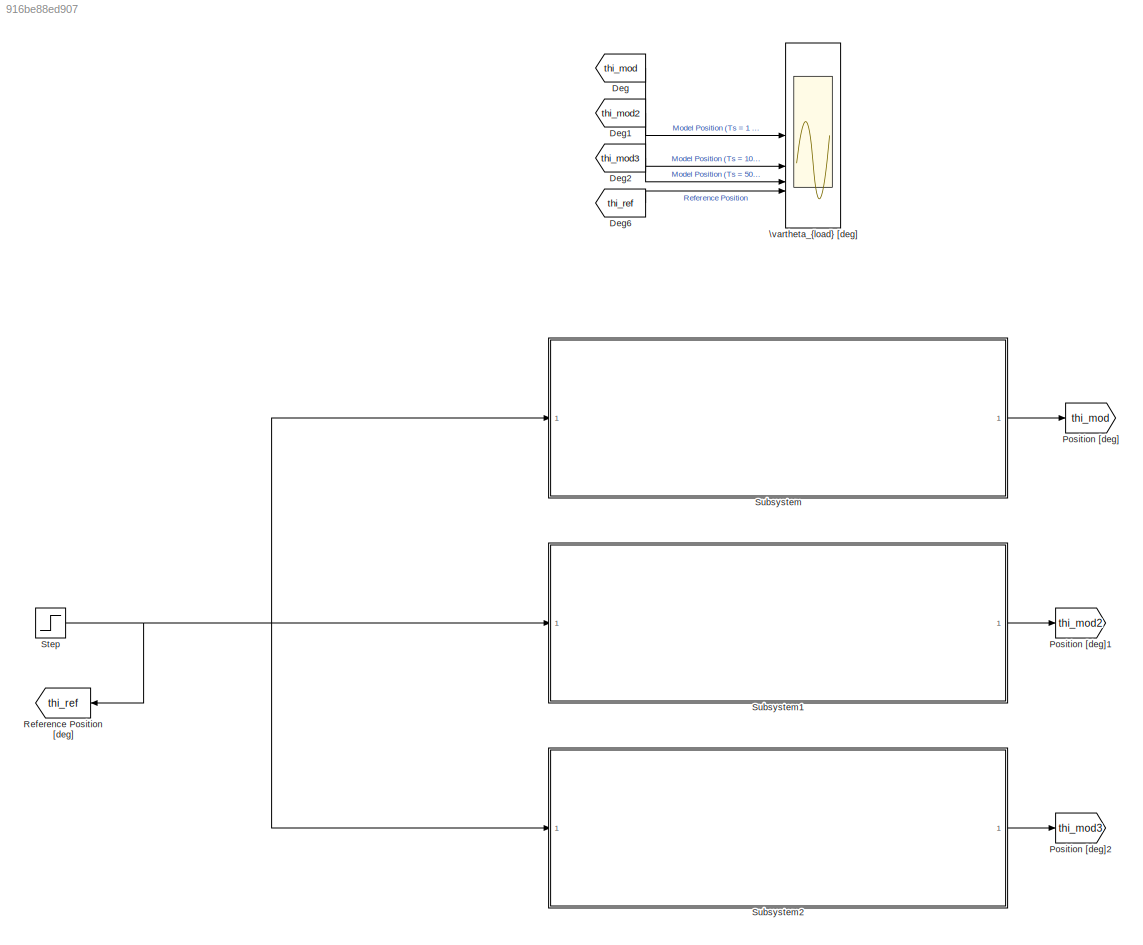
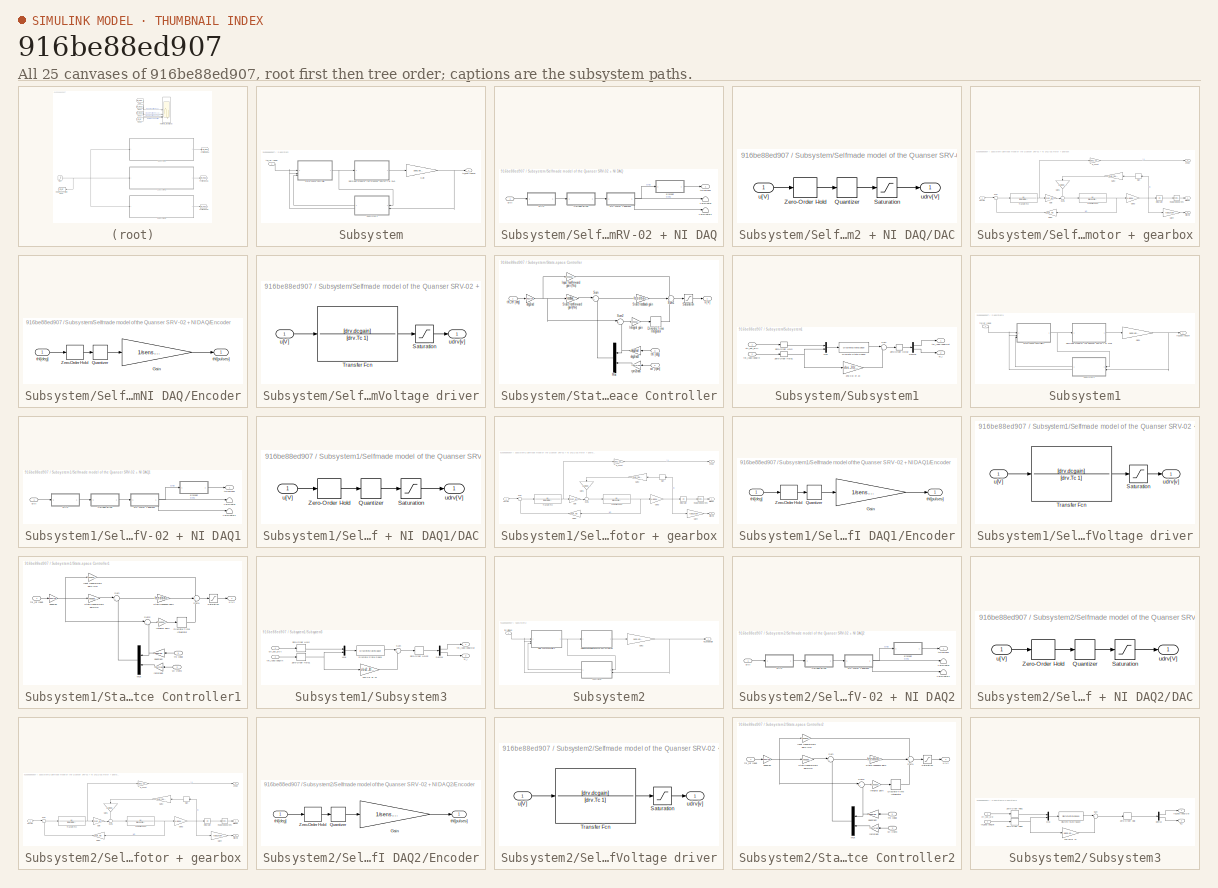
[diagram: thumbnail index - all 25 canvases of the model, root first then tree order]
MODEL slx_916be88ed907
KIND model
CONFIG AbsTol = auto
CONFIG EnableMultiTasking = off
CONFIG FixedStep = sIn.step_size
CONFIG MaxStep = auto
CONFIG MinStep = auto
CONFIG RelTol = auto
CONFIG SampleTimeConstraint = Unconstrained
CONFIG SolverName = FixedStepAuto
CONFIG StartTime = 0.0
CONFIG StopTime = sIn.simulation_time 
BLOCK [From] Deg
  GotoTag = thi_mod
BLOCK [From] Deg1
  GotoTag = thi_mod2
BLOCK [From] Deg2
  GotoTag = thi_mod3
BLOCK [From] Deg6
  GotoTag = thi_ref
BLOCK [Goto] Position [deg]
  GotoTag = thi_mod
BLOCK [Goto] Position [deg]1
  GotoTag = thi_mod2
BLOCK [Goto] Position [deg]2
  GotoTag = thi_mod3
BLOCK [Goto] Reference Position [deg]
  GotoTag = thi_ref
  NameLocation = top
BLOCK [Step] Step
  After = 50
  SampleTime = 0
  Time = 0
BLOCK [SubSystem] Subsystem
BLOCK [Gain] Subsystem/Gain
  Gain = sens.enc.pulse2deg
BLOCK [SubSystem] Subsystem/Selfmade model of the Quanser SRV-02 + NI DAQ
BLOCK [SubSystem] Subsystem/Selfmade model of the Quanser SRV-02 + NI DAQ/DAC
BLOCK [Quantizer] Subsystem/Selfmade model of the Quanser SRV-02 + NI DAQ/DAC/Quantizer
  QuantizationInterval = daq.dac.q
BLOCK [Saturate] Subsystem/Selfmade model of the Quanser SRV-02 + NI DAQ/DAC/Saturation
  LowerLimit = -10
  UpperLimit = 10
BLOCK [ZeroOrderHold] Subsystem/Selfmade model of the Quanser SRV-02 + NI DAQ/DAC/Zero-Order Hold
  SampleTime = 1e-3
BLOCK [Inport] Subsystem/Selfmade model of the Quanser SRV-02 + NI DAQ/DAC/u[V]
BLOCK [Outport] Subsystem/Selfmade model of the Quanser SRV-02 + NI DAQ/DAC/udrv[V]
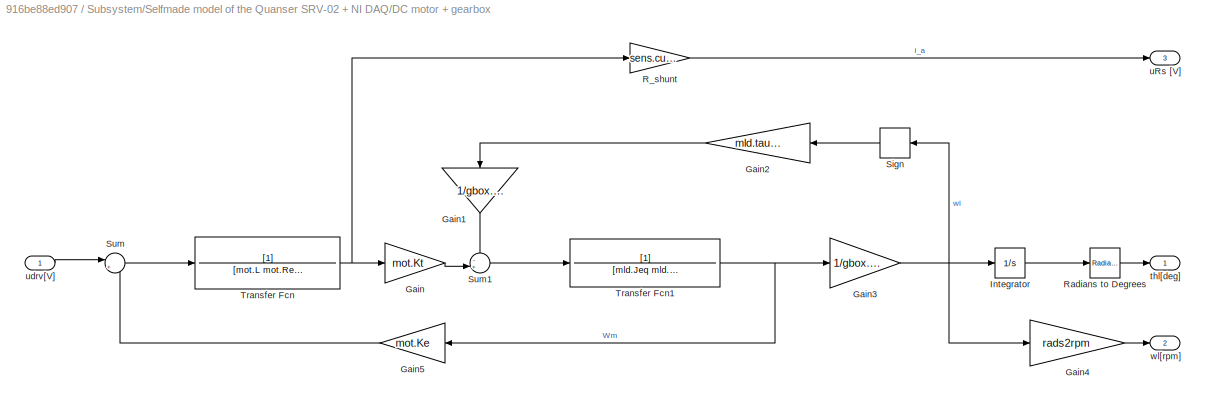
BLOCK [SubSystem] Subsystem/Selfmade model of the Quanser SRV-02 + NI DAQ/DC motor + gearbox
BLOCK [Gain] Subsystem/Selfmade model of the Quanser SRV-02 + NI DAQ/DC motor + gearbox/Gain
  Gain = mot.Kt
BLOCK [Gain] Subsystem/Selfmade model of the Quanser SRV-02 + NI DAQ/DC motor + gearbox/Gain1
  Gain = 1/gbox.N1
  NameLocation = left
BLOCK [Gain] Subsystem/Selfmade model of the Quanser SRV-02 + NI DAQ/DC motor + gearbox/Gain2
  Gain = mld.tausf
  NameLocation = top
BLOCK [Gain] Subsystem/Selfmade model of the Quanser SRV-02 + NI DAQ/DC motor + gearbox/Gain3
  Gain = 1/gbox.N1
BLOCK [Gain] Subsystem/Selfmade model of the Quanser SRV-02 + NI DAQ/DC motor + gearbox/Gain4
  Gain = rads2rpm
BLOCK [Gain] Subsystem/Selfmade model of the Quanser SRV-02 + NI DAQ/DC motor + gearbox/Gain5
  Gain = mot.Ke
  NameLocation = top
BLOCK [Integrator] Subsystem/Selfmade model of the Quanser SRV-02 + NI DAQ/DC motor + gearbox/Integrator
BLOCK [Gain] Subsystem/Selfmade model of the Quanser SRV-02 + NI DAQ/DC motor + gearbox/R_shunt
  Gain = sens.curr.Rs
BLOCK [Reference] Subsystem/Selfmade model of the Quanser SRV-02 + NI DAQ/DC motor + gearbox/Radians to Degrees  REF=simulink_extras/Transformations/Radians
to Degrees
  SourceBlock = simulink_extras/Transformations/Radians\nto Degrees
  SourceType = RadiansToDegrees
BLOCK [Signum] Subsystem/Selfmade model of the Quanser SRV-02 + NI DAQ/DC motor + gearbox/Sign
  NameLocation = top
  ZeroCross = off
BLOCK [Sum] Subsystem/Selfmade model of the Quanser SRV-02 + NI DAQ/DC motor + gearbox/Sum
  Inputs = |+-
BLOCK [Sum] Subsystem/Selfmade model of the Quanser SRV-02 + NI DAQ/DC motor + gearbox/Sum1
  Inputs = -+|
BLOCK [TransferFcn] Subsystem/Selfmade model of the Quanser SRV-02 + NI DAQ/DC motor + gearbox/Transfer Fcn
  Denominator = [mot.L mot.Req]
BLOCK [TransferFcn] Subsystem/Selfmade model of the Quanser SRV-02 + NI DAQ/DC motor + gearbox/Transfer Fcn1
  Denominator = [mld.Jeq mld.Beq]
BLOCK [Outport] Subsystem/Selfmade model of the Quanser SRV-02 + NI DAQ/DC motor + gearbox/thl[deg]
BLOCK [Outport] Subsystem/Selfmade model of the Quanser SRV-02 + NI DAQ/DC motor + gearbox/uRs [V]
  Port = 3
BLOCK [Inport] Subsystem/Selfmade model of the Quanser SRV-02 + NI DAQ/DC motor + gearbox/udrv[V]
BLOCK [Outport] Subsystem/Selfmade model of the Quanser SRV-02 + NI DAQ/DC motor + gearbox/wl[rpm]
  Port = 2
BLOCK [SubSystem] Subsystem/Selfmade model of the Quanser SRV-02 + NI DAQ/Encoder
  NameLocation = top
BLOCK [Gain] Subsystem/Selfmade model of the Quanser SRV-02 + NI DAQ/Encoder/Gain
  Gain = 1/sens.enc.pulse2deg
BLOCK [Quantizer] Subsystem/Selfmade model of the Quanser SRV-02 + NI DAQ/Encoder/Quantizer
  QuantizationInterval = sens.enc.pulse2deg
BLOCK [ZeroOrderHold] Subsystem/Selfmade model of the Quanser SRV-02 + NI DAQ/Encoder/Zero-Order Hold
  SampleTime = 1e-3
BLOCK [Inport] Subsystem/Selfmade model of the Quanser SRV-02 + NI DAQ/Encoder/thl[deg]
BLOCK [Outport] Subsystem/Selfmade model of the Quanser SRV-02 + NI DAQ/Encoder/thl[pulses]
BLOCK [Terminator] Subsystem/Selfmade model of the Quanser SRV-02 + NI DAQ/Terminator
BLOCK [Terminator] Subsystem/Selfmade model of the Quanser SRV-02 + NI DAQ/Terminator1
BLOCK [SubSystem] Subsystem/Selfmade model of the Quanser SRV-02 + NI DAQ/Voltage driver
BLOCK [Saturate] Subsystem/Selfmade model of the Quanser SRV-02 + NI DAQ/Voltage driver/Saturation
  LowerLimit = -12
  UpperLimit = 12
BLOCK [TransferFcn] Subsystem/Selfmade model of the Quanser SRV-02 + NI DAQ/Voltage driver/Transfer Fcn
  Denominator = [drv.Tc 1]
  Numerator = [drv.dcgain]
BLOCK [Inport] Subsystem/Selfmade model of the Quanser SRV-02 + NI DAQ/Voltage driver/u[V]
BLOCK [Outport] Subsystem/Selfmade model of the Quanser SRV-02 + NI DAQ/Voltage driver/udrv[v]
BLOCK [Outport] Subsystem/Selfmade model of the Quanser SRV-02 + NI DAQ/thl[pulses]
BLOCK [Inport] Subsystem/Selfmade model of the Quanser SRV-02 + NI DAQ/u[V]
BLOCK [SubSystem] Subsystem/State-space Controller
BLOCK [DiscreteIntegrator] Subsystem/State-space Controller/Discrete-Time Integrator
  ICPrevOutput = DiscIntNeverNeededParam
  ICPrevScaledInput = DiscIntNeverNeededParam
  InitialConditionSetting = Auto
  IntegratorMethod = Accumulation: Forward Euler
  SampleTime = sIn.T_s
BLOCK [Gain] Subsystem/State-space Controller/Input feedforward gain (Nu)
  Gain = feedback.Nu
BLOCK [Gain] Subsystem/State-space Controller/Integral gain
  Gain = feedback.Ki
BLOCK [Mux] Subsystem/State-space Controller/Mux
  DisplayOption = bar
  Inputs = 2
  NameLocation = top
BLOCK [Saturate] Subsystem/State-space Controller/Saturation
  LowerLimit = -10
  UpperLimit = 10
BLOCK [Gain] Subsystem/State-space Controller/State feedback gain
  Gain = feedback.K
  Multiplication = Matrix(K*u)
BLOCK [Gain] Subsystem/State-space Controller/State feedforward gain(Nx)
  Gain = feedback.Nx
BLOCK [Sum] Subsystem/State-space Controller/Sum
  Inputs = |+-
BLOCK [Sum] Subsystem/State-space Controller/Sum1
  Inputs = +++
BLOCK [Sum] Subsystem/State-space Controller/Sum2
  Inputs = |+-
BLOCK [Gain] Subsystem/State-space Controller/deg2rad
  Gain = deg2rad
BLOCK [Gain] Subsystem/State-space Controller/deg2rad2
  Gain = deg2rad
  NameLocation = top
BLOCK [Gain] Subsystem/State-space Controller/rpm2rads
  Gain = rpm2rads
  NameLocation = top
BLOCK [Inport] Subsystem/State-space Controller/thl [deg]
  NameLocation = top
  Port = 3
BLOCK [Inport] Subsystem/State-space Controller/thl_ref [deg]
BLOCK [Outport] Subsystem/State-space Controller/u [V]
BLOCK [Inport] Subsystem/State-space Controller/wl [rpm]
  NameLocation = top
  Port = 2
BLOCK [SubSystem] Subsystem/Subsystem1
  NameLocation = top
BLOCK [Gain] Subsystem/Subsystem1/2nd Col of J0
  Gain = obs.J0(:,2)
  NameLocation = top
BLOCK [Demux] Subsystem/Subsystem1/Demux
  Outputs = 2
BLOCK [DiscreteStateSpace] Subsystem/Subsystem1/Discrete State-Space
  A = obs.phi0
  B = obs.gamma0
  C = obs.H0
  D = zeros(2,2)
  SampleTime = sIn.T_s
BLOCK [Mux] Subsystem/Subsystem1/Mux
  DisplayOption = bar
  Inputs = 2
BLOCK [Sum] Subsystem/Subsystem1/Sum
  Inputs = |++
BLOCK [ZeroOrderHold] Subsystem/Subsystem1/Zero-Order Hold
  SampleTime = sIn.T_s
BLOCK [ZeroOrderHold] Subsystem/Subsystem1/Zero-Order Hold1
  SampleTime = sIn.T_s
BLOCK [ZeroOrderHold] Subsystem/Subsystem1/Zero-Order Hold2
  SampleTime = sIn.T_s
BLOCK [Inport] Subsystem/Subsystem1/ctr_out_u[V]
BLOCK [Outport] Subsystem/Subsystem1/thl_load [deg]Out
BLOCK [Inport] Subsystem/Subsystem1/thl_load [deg]in
  Port = 2
BLOCK [Outport] Subsystem/Subsystem1/w_l
  Port = 2
BLOCK [Outport] Subsystem/thl_load [deg]in
BLOCK [Inport] Subsystem/thl_ref [deg]
BLOCK [SubSystem] Subsystem1
BLOCK [Gain] Subsystem1/Gain1
  Gain = sens.enc.pulse2deg
BLOCK [SubSystem] Subsystem1/Selfmade model of the Quanser SRV-02 + NI DAQ1
BLOCK [SubSystem] Subsystem1/Selfmade model of the Quanser SRV-02 + NI DAQ1/DAC
BLOCK [Quantizer] Subsystem1/Selfmade model of the Quanser SRV-02 + NI DAQ1/DAC/Quantizer
  QuantizationInterval = daq.dac.q
BLOCK [Saturate] Subsystem1/Selfmade model of the Quanser SRV-02 + NI DAQ1/DAC/Saturation
  LowerLimit = -10
  UpperLimit = 10
BLOCK [ZeroOrderHold] Subsystem1/Selfmade model of the Quanser SRV-02 + NI DAQ1/DAC/Zero-Order Hold
  SampleTime = 1e-3
BLOCK [Inport] Subsystem1/Selfmade model of the Quanser SRV-02 + NI DAQ1/DAC/u[V]
BLOCK [Outport] Subsystem1/Selfmade model of the Quanser SRV-02 + NI DAQ1/DAC/udrv[V]
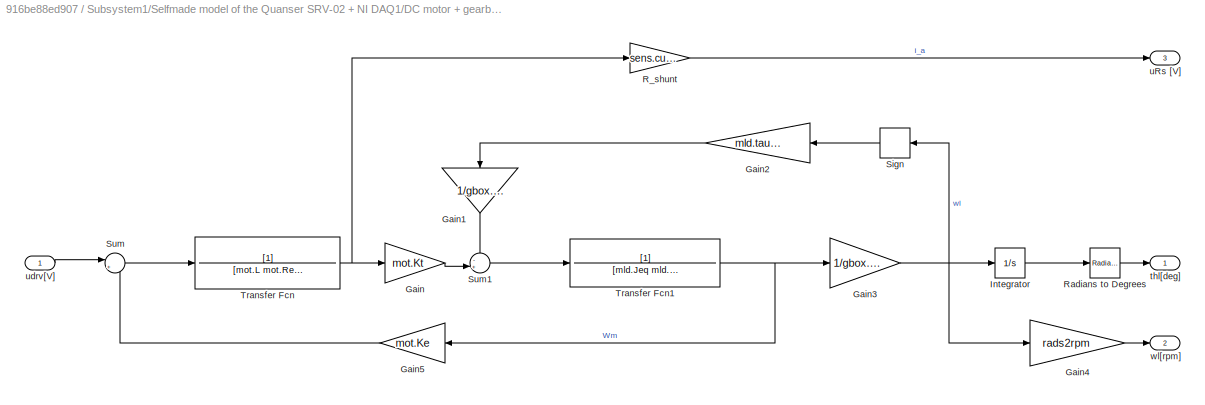
BLOCK [SubSystem] Subsystem1/Selfmade model of the Quanser SRV-02 + NI DAQ1/DC motor + gearbox
BLOCK [Gain] Subsystem1/Selfmade model of the Quanser SRV-02 + NI DAQ1/DC motor + gearbox/Gain
  Gain = mot.Kt
BLOCK [Gain] Subsystem1/Selfmade model of the Quanser SRV-02 + NI DAQ1/DC motor + gearbox/Gain1
  Gain = 1/gbox.N1
  NameLocation = left
BLOCK [Gain] Subsystem1/Selfmade model of the Quanser SRV-02 + NI DAQ1/DC motor + gearbox/Gain2
  Gain = mld.tausf
  NameLocation = top
BLOCK [Gain] Subsystem1/Selfmade model of the Quanser SRV-02 + NI DAQ1/DC motor + gearbox/Gain3
  Gain = 1/gbox.N1
BLOCK [Gain] Subsystem1/Selfmade model of the Quanser SRV-02 + NI DAQ1/DC motor + gearbox/Gain4
  Gain = rads2rpm
BLOCK [Gain] Subsystem1/Selfmade model of the Quanser SRV-02 + NI DAQ1/DC motor + gearbox/Gain5
  Gain = mot.Ke
  NameLocation = top
BLOCK [Integrator] Subsystem1/Selfmade model of the Quanser SRV-02 + NI DAQ1/DC motor + gearbox/Integrator
BLOCK [Gain] Subsystem1/Selfmade model of the Quanser SRV-02 + NI DAQ1/DC motor + gearbox/R_shunt
  Gain = sens.curr.Rs
BLOCK [Reference] Subsystem1/Selfmade model of the Quanser SRV-02 + NI DAQ1/DC motor + gearbox/Radians to Degrees  REF=simulink_extras/Transformations/Radians
to Degrees
  SourceBlock = simulink_extras/Transformations/Radians\nto Degrees
  SourceType = RadiansToDegrees
BLOCK [Signum] Subsystem1/Selfmade model of the Quanser SRV-02 + NI DAQ1/DC motor + gearbox/Sign
  NameLocation = top
  ZeroCross = off
BLOCK [Sum] Subsystem1/Selfmade model of the Quanser SRV-02 + NI DAQ1/DC motor + gearbox/Sum
  Inputs = |+-
BLOCK [Sum] Subsystem1/Selfmade model of the Quanser SRV-02 + NI DAQ1/DC motor + gearbox/Sum1
  Inputs = -+|
BLOCK [TransferFcn] Subsystem1/Selfmade model of the Quanser SRV-02 + NI DAQ1/DC motor + gearbox/Transfer Fcn
  Denominator = [mot.L mot.Req]
BLOCK [TransferFcn] Subsystem1/Selfmade model of the Quanser SRV-02 + NI DAQ1/DC motor + gearbox/Transfer Fcn1
  Denominator = [mld.Jeq mld.Beq]
BLOCK [Outport] Subsystem1/Selfmade model of the Quanser SRV-02 + NI DAQ1/DC motor + gearbox/thl[deg]
BLOCK [Outport] Subsystem1/Selfmade model of the Quanser SRV-02 + NI DAQ1/DC motor + gearbox/uRs [V]
  Port = 3
BLOCK [Inport] Subsystem1/Selfmade model of the Quanser SRV-02 + NI DAQ1/DC motor + gearbox/udrv[V]
BLOCK [Outport] Subsystem1/Selfmade model of the Quanser SRV-02 + NI DAQ1/DC motor + gearbox/wl[rpm]
  Port = 2
BLOCK [SubSystem] Subsystem1/Selfmade model of the Quanser SRV-02 + NI DAQ1/Encoder
  NameLocation = top
BLOCK [Gain] Subsystem1/Selfmade model of the Quanser SRV-02 + NI DAQ1/Encoder/Gain
  Gain = 1/sens.enc.pulse2deg
BLOCK [Quantizer] Subsystem1/Selfmade model of the Quanser SRV-02 + NI DAQ1/Encoder/Quantizer
  QuantizationInterval = sens.enc.pulse2deg
BLOCK [ZeroOrderHold] Subsystem1/Selfmade model of the Quanser SRV-02 + NI DAQ1/Encoder/Zero-Order Hold
  SampleTime = 1e-3
BLOCK [Inport] Subsystem1/Selfmade model of the Quanser SRV-02 + NI DAQ1/Encoder/thl[deg]
BLOCK [Outport] Subsystem1/Selfmade model of the Quanser SRV-02 + NI DAQ1/Encoder/thl[pulses]
BLOCK [Terminator] Subsystem1/Selfmade model of the Quanser SRV-02 + NI DAQ1/Terminator
BLOCK [Terminator] Subsystem1/Selfmade model of the Quanser SRV-02 + NI DAQ1/Terminator1
BLOCK [SubSystem] Subsystem1/Selfmade model of the Quanser SRV-02 + NI DAQ1/Voltage driver
BLOCK [Saturate] Subsystem1/Selfmade model of the Quanser SRV-02 + NI DAQ1/Voltage driver/Saturation
  LowerLimit = -12
  UpperLimit = 12
BLOCK [TransferFcn] Subsystem1/Selfmade model of the Quanser SRV-02 + NI DAQ1/Voltage driver/Transfer Fcn
  Denominator = [drv.Tc 1]
  Numerator = [drv.dcgain]
BLOCK [Inport] Subsystem1/Selfmade model of the Quanser SRV-02 + NI DAQ1/Voltage driver/u[V]
BLOCK [Outport] Subsystem1/Selfmade model of the Quanser SRV-02 + NI DAQ1/Voltage driver/udrv[v]
BLOCK [Outport] Subsystem1/Selfmade model of the Quanser SRV-02 + NI DAQ1/thl[pulses]
BLOCK [Inport] Subsystem1/Selfmade model of the Quanser SRV-02 + NI DAQ1/u[V]
BLOCK [SubSystem] Subsystem1/State-space Controller1
BLOCK [DiscreteIntegrator] Subsystem1/State-space Controller1/Discrete-Time Integrator
  ICPrevOutput = DiscIntNeverNeededParam
  ICPrevScaledInput = DiscIntNeverNeededParam
  InitialConditionSetting = Auto
  IntegratorMethod = Accumulation: Forward Euler
  SampleTime = sIn.T_s2
BLOCK [Gain] Subsystem1/State-space Controller1/Input feedforward gain (Nu)
  Gain = feedback2.Nu
BLOCK [Gain] Subsystem1/State-space Controller1/Integral gain
  Gain = feedback2.Ki
BLOCK [Mux] Subsystem1/State-space Controller1/Mux
  DisplayOption = bar
  Inputs = 2
  NameLocation = top
BLOCK [Saturate] Subsystem1/State-space Controller1/Saturation
  LowerLimit = -10
  UpperLimit = 10
BLOCK [Gain] Subsystem1/State-space Controller1/State feedback gain
  Gain = feedback2.K
  Multiplication = Matrix(K*u)
BLOCK [Gain] Subsystem1/State-space Controller1/State feedforward gain(Nx)
  Gain = feedback2.Nx
BLOCK [Sum] Subsystem1/State-space Controller1/Sum
  Inputs = |+-
BLOCK [Sum] Subsystem1/State-space Controller1/Sum1
  Inputs = +++
BLOCK [Sum] Subsystem1/State-space Controller1/Sum2
  Inputs = |+-
BLOCK [Gain] Subsystem1/State-space Controller1/deg2rad
  Gain = deg2rad
BLOCK [Gain] Subsystem1/State-space Controller1/deg2rad2
  Gain = deg2rad
  NameLocation = top
BLOCK [Gain] Subsystem1/State-space Controller1/rpm2rads
  Gain = rpm2rads
  NameLocation = top
BLOCK [Inport] Subsystem1/State-space Controller1/thl [deg]
  NameLocation = top
  Port = 3
BLOCK [Inport] Subsystem1/State-space Controller1/thl_ref [deg]
BLOCK [Outport] Subsystem1/State-space Controller1/u [V]
BLOCK [Inport] Subsystem1/State-space Controller1/wl [rpm]
  NameLocation = top
  Port = 2
BLOCK [SubSystem] Subsystem1/Subsystem3
  NameLocation = top
BLOCK [Gain] Subsystem1/Subsystem3/2nd Col of J0
  Gain = obs2.J0(:,2)
  NameLocation = top
BLOCK [Demux] Subsystem1/Subsystem3/Demux
  Outputs = 2
BLOCK [DiscreteStateSpace] Subsystem1/Subsystem3/Discrete State-Space
  A = obs2.phi0
  B = obs2.gamma0
  C = obs2.H0
  D = zeros(2,2)
  SampleTime = sIn.T_s2
BLOCK [Mux] Subsystem1/Subsystem3/Mux
  DisplayOption = bar
  Inputs = 2
BLOCK [Sum] Subsystem1/Subsystem3/Sum
  Inputs = |++
BLOCK [ZeroOrderHold] Subsystem1/Subsystem3/Zero-Order Hold
  SampleTime = sIn.T_s2
BLOCK [ZeroOrderHold] Subsystem1/Subsystem3/Zero-Order Hold1
  SampleTime = sIn.T_s2
BLOCK [ZeroOrderHold] Subsystem1/Subsystem3/Zero-Order Hold2
  SampleTime = sIn.T_s2
BLOCK [Inport] Subsystem1/Subsystem3/ctr_out_u[V]
BLOCK [Outport] Subsystem1/Subsystem3/thl_load [deg]Out
BLOCK [Inport] Subsystem1/Subsystem3/thl_load [deg]in
  Port = 2
BLOCK [Outport] Subsystem1/Subsystem3/w_l
  Port = 2
BLOCK [Outport] Subsystem1/thl_load [deg]in
BLOCK [Inport] Subsystem1/thl_ref [deg]
BLOCK [SubSystem] Subsystem2
BLOCK [Gain] Subsystem2/Gain2
  Gain = sens.enc.pulse2deg
BLOCK [SubSystem] Subsystem2/Selfmade model of the Quanser SRV-02 + NI DAQ2
BLOCK [SubSystem] Subsystem2/Selfmade model of the Quanser SRV-02 + NI DAQ2/DAC
BLOCK [Quantizer] Subsystem2/Selfmade model of the Quanser SRV-02 + NI DAQ2/DAC/Quantizer
  QuantizationInterval = daq.dac.q
BLOCK [Saturate] Subsystem2/Selfmade model of the Quanser SRV-02 + NI DAQ2/DAC/Saturation
  LowerLimit = -10
  UpperLimit = 10
BLOCK [ZeroOrderHold] Subsystem2/Selfmade model of the Quanser SRV-02 + NI DAQ2/DAC/Zero-Order Hold
  SampleTime = 1e-3
BLOCK [Inport] Subsystem2/Selfmade model of the Quanser SRV-02 + NI DAQ2/DAC/u[V]
BLOCK [Outport] Subsystem2/Selfmade model of the Quanser SRV-02 + NI DAQ2/DAC/udrv[V]
BLOCK [SubSystem] Subsystem2/Selfmade model of the Quanser SRV-02 + NI DAQ2/DC motor + gearbox
BLOCK [Gain] Subsystem2/Selfmade model of the Quanser SRV-02 + NI DAQ2/DC motor + gearbox/Gain
  Gain = mot.Kt
BLOCK [Gain] Subsystem2/Selfmade model of the Quanser SRV-02 + NI DAQ2/DC motor + gearbox/Gain1
  Gain = 1/gbox.N1
  NameLocation = left
BLOCK [Gain] Subsystem2/Selfmade model of the Quanser SRV-02 + NI DAQ2/DC motor + gearbox/Gain2
  Gain = mld.tausf
  NameLocation = top
BLOCK [Gain] Subsystem2/Selfmade model of the Quanser SRV-02 + NI DAQ2/DC motor + gearbox/Gain3
  Gain = 1/gbox.N1
BLOCK [Gain] Subsystem2/Selfmade model of the Quanser SRV-02 + NI DAQ2/DC motor + gearbox/Gain4
  Gain = rads2rpm
BLOCK [Gain] Subsystem2/Selfmade model of the Quanser SRV-02 + NI DAQ2/DC motor + gearbox/Gain5
  Gain = mot.Ke
  NameLocation = top
BLOCK [Integrator] Subsystem2/Selfmade model of the Quanser SRV-02 + NI DAQ2/DC motor + gearbox/Integrator
BLOCK [Gain] Subsystem2/Selfmade model of the Quanser SRV-02 + NI DAQ2/DC motor + gearbox/R_shunt
  Gain = sens.curr.Rs
BLOCK [Reference] Subsystem2/Selfmade model of the Quanser SRV-02 + NI DAQ2/DC motor + gearbox/Radians to Degrees  REF=simulink_extras/Transformations/Radians
to Degrees
  SourceBlock = simulink_extras/Transformations/Radians\nto Degrees
  SourceType = RadiansToDegrees
BLOCK [Signum] Subsystem2/Selfmade model of the Quanser SRV-02 + NI DAQ2/DC motor + gearbox/Sign
  NameLocation = top
  ZeroCross = off
BLOCK [Sum] Subsystem2/Selfmade model of the Quanser SRV-02 + NI DAQ2/DC motor + gearbox/Sum
  Inputs = |+-
BLOCK [Sum] Subsystem2/Selfmade model of the Quanser SRV-02 + NI DAQ2/DC motor + gearbox/Sum1
  Inputs = -+|
BLOCK [TransferFcn] Subsystem2/Selfmade model of the Quanser SRV-02 + NI DAQ2/DC motor + gearbox/Transfer Fcn
  Denominator = [mot.L mot.Req]
BLOCK [TransferFcn] Subsystem2/Selfmade model of the Quanser SRV-02 + NI DAQ2/DC motor + gearbox/Transfer Fcn1
  Denominator = [mld.Jeq mld.Beq]
BLOCK [Outport] Subsystem2/Selfmade model of the Quanser SRV-02 + NI DAQ2/DC motor + gearbox/thl[deg]
BLOCK [Outport] Subsystem2/Selfmade model of the Quanser SRV-02 + NI DAQ2/DC motor + gearbox/uRs [V]
  Port = 3
BLOCK [Inport] Subsystem2/Selfmade model of the Quanser SRV-02 + NI DAQ2/DC motor + gearbox/udrv[V]
BLOCK [Outport] Subsystem2/Selfmade model of the Quanser SRV-02 + NI DAQ2/DC motor + gearbox/wl[rpm]
  Port = 2
BLOCK [SubSystem] Subsystem2/Selfmade model of the Quanser SRV-02 + NI DAQ2/Encoder
  NameLocation = top
BLOCK [Gain] Subsystem2/Selfmade model of the Quanser SRV-02 + NI DAQ2/Encoder/Gain
  Gain = 1/sens.enc.pulse2deg
BLOCK [Quantizer] Subsystem2/Selfmade model of the Quanser SRV-02 + NI DAQ2/Encoder/Quantizer
  QuantizationInterval = sens.enc.pulse2deg
BLOCK [ZeroOrderHold] Subsystem2/Selfmade model of the Quanser SRV-02 + NI DAQ2/Encoder/Zero-Order Hold
  SampleTime = 1e-3
BLOCK [Inport] Subsystem2/Selfmade model of the Quanser SRV-02 + NI DAQ2/Encoder/thl[deg]
BLOCK [Outport] Subsystem2/Selfmade model of the Quanser SRV-02 + NI DAQ2/Encoder/thl[pulses]
BLOCK [Terminator] Subsystem2/Selfmade model of the Quanser SRV-02 + NI DAQ2/Terminator
BLOCK [Terminator] Subsystem2/Selfmade model of the Quanser SRV-02 + NI DAQ2/Terminator1
BLOCK [SubSystem] Subsystem2/Selfmade model of the Quanser SRV-02 + NI DAQ2/Voltage driver
BLOCK [Saturate] Subsystem2/Selfmade model of the Quanser SRV-02 + NI DAQ2/Voltage driver/Saturation
  LowerLimit = -12
  UpperLimit = 12
BLOCK [TransferFcn] Subsystem2/Selfmade model of the Quanser SRV-02 + NI DAQ2/Voltage driver/Transfer Fcn
  Denominator = [drv.Tc 1]
  Numerator = [drv.dcgain]
BLOCK [Inport] Subsystem2/Selfmade model of the Quanser SRV-02 + NI DAQ2/Voltage driver/u[V]
BLOCK [Outport] Subsystem2/Selfmade model of the Quanser SRV-02 + NI DAQ2/Voltage driver/udrv[v]
BLOCK [Outport] Subsystem2/Selfmade model of the Quanser SRV-02 + NI DAQ2/thl[pulses]
BLOCK [Inport] Subsystem2/Selfmade model of the Quanser SRV-02 + NI DAQ2/u[V]
BLOCK [SubSystem] Subsystem2/State-space Controller2
BLOCK [DiscreteIntegrator] Subsystem2/State-space Controller2/Discrete-Time Integrator
  ICPrevOutput = DiscIntNeverNeededParam
  ICPrevScaledInput = DiscIntNeverNeededParam
  InitialConditionSetting = Auto
  IntegratorMethod = Accumulation: Forward Euler
  SampleTime = sIn.T_s3
BLOCK [Gain] Subsystem2/State-space Controller2/Input feedforward gain (Nu)
  Gain = feedback3.Nu
BLOCK [Gain] Subsystem2/State-space Controller2/Integral gain
  Gain = feedback3.Ki
BLOCK [Mux] Subsystem2/State-space Controller2/Mux
  DisplayOption = bar
  Inputs = 2
  NameLocation = top
BLOCK [Saturate] Subsystem2/State-space Controller2/Saturation
  LowerLimit = -10
  UpperLimit = 10
BLOCK [Gain] Subsystem2/State-space Controller2/State feedback gain
  Gain = feedback3.K
  Multiplication = Matrix(K*u)
BLOCK [Gain] Subsystem2/State-space Controller2/State feedforward gain(Nx)
  Gain = feedback3.Nx
BLOCK [Sum] Subsystem2/State-space Controller2/Sum
  Inputs = |+-
BLOCK [Sum] Subsystem2/State-space Controller2/Sum1
  Inputs = +++
BLOCK [Sum] Subsystem2/State-space Controller2/Sum2
  Inputs = |+-
BLOCK [Gain] Subsystem2/State-space Controller2/deg2rad
  Gain = deg2rad
BLOCK [Gain] Subsystem2/State-space Controller2/deg2rad2
  Gain = deg2rad
  NameLocation = top
BLOCK [Gain] Subsystem2/State-space Controller2/rpm2rads
  Gain = rpm2rads
  NameLocation = top
BLOCK [Inport] Subsystem2/State-space Controller2/thl [deg]
  NameLocation = top
  Port = 3
BLOCK [Inport] Subsystem2/State-space Controller2/thl_ref [deg]
BLOCK [Outport] Subsystem2/State-space Controller2/u [V]
BLOCK [Inport] Subsystem2/State-space Controller2/wl [rpm]
  NameLocation = top
  Port = 2
BLOCK [SubSystem] Subsystem2/Subsystem3
  NameLocation = top
BLOCK [Gain] Subsystem2/Subsystem3/2nd Col of J0
  Gain = obs3.J0(:,2)
  NameLocation = top
BLOCK [Demux] Subsystem2/Subsystem3/Demux
  Outputs = 2
BLOCK [DiscreteStateSpace] Subsystem2/Subsystem3/Discrete State-Space
  A = obs3.phi0
  B = obs3.gamma0
  C = obs3.H0
  D = zeros(2,2)
  SampleTime = sIn.T_s3
BLOCK [Mux] Subsystem2/Subsystem3/Mux
  DisplayOption = bar
  Inputs = 2
BLOCK [Sum] Subsystem2/Subsystem3/Sum
  Inputs = |++
BLOCK [ZeroOrderHold] Subsystem2/Subsystem3/Zero-Order Hold
  SampleTime = sIn.T_s3
BLOCK [ZeroOrderHold] Subsystem2/Subsystem3/Zero-Order Hold1
  SampleTime = sIn.T_s3
BLOCK [ZeroOrderHold] Subsystem2/Subsystem3/Zero-Order Hold2
  SampleTime = sIn.T_s3
BLOCK [Inport] Subsystem2/Subsystem3/ctr_out_u[V]
BLOCK [Outport] Subsystem2/Subsystem3/thl_load [deg]Out
BLOCK [Inport] Subsystem2/Subsystem3/thl_load [deg]in
  Port = 2
BLOCK [Outport] Subsystem2/Subsystem3/w_l
  Port = 2
BLOCK [Outport] Subsystem2/thl_load [deg]in
BLOCK [Inport] Subsystem2/thl_ref [deg]
BLOCK [Scope] \vartheta_{load} [deg]
  Floating = off
  NumInputPorts = 4
  ScopeSpecificationString = Simulink.scopes.TimeScopeBlockCfg('CurrentConfiguration', extmgr.ConfigurationSet(extmgr.Configuration('Core','General UI',true),extmgr.Configuration('Core','Source UI',true),extmgr.Configuration('Sources','WiredSimulink',true,'DataLoggingVariableName','ScopeData1','DataLogging',true,'DataLoggingSaveFormat','StructureWithTime'),extmgr.Configuration('Visuals','Time Domain',true,'SerializedDisplays'...<+1806ch>
LINE Deg1:1 -> \vartheta_{load} [deg]:2
LINE Deg2:1 -> \vartheta_{load} [deg]:3
LINE Deg6:1 -> \vartheta_{load} [deg]:4
LINE Deg:1 -> \vartheta_{load} [deg]:1
NET Step:1 -> Reference Position [deg]:1, Subsystem1:1, Subsystem2:1, Subsystem:1
NET Subsystem/Gain:1 -> Subsystem/Subsystem1:2, Subsystem/thl_load [deg]in:1
LINE Subsystem/Selfmade model of the Quanser SRV-02 + NI DAQ/DAC/Quantizer:1 -> Subsystem/Selfmade model of the Quanser SRV-02 + NI DAQ/DAC/Saturation:1
LINE Subsystem/Selfmade model of the Quanser SRV-02 + NI DAQ/DAC/Saturation:1 -> Subsystem/Selfmade model of the Quanser SRV-02 + NI DAQ/DAC/udrv[V]:1
LINE Subsystem/Selfmade model of the Quanser SRV-02 + NI DAQ/DAC/Zero-Order Hold:1 -> Subsystem/Selfmade model of the Quanser SRV-02 + NI DAQ/DAC/Quantizer:1
LINE Subsystem/Selfmade model of the Quanser SRV-02 + NI DAQ/DAC/u[V]:1 -> Subsystem/Selfmade model of the Quanser SRV-02 + NI DAQ/DAC/Zero-Order Hold:1
LINE Subsystem/Selfmade model of the Quanser SRV-02 + NI DAQ/DAC:1 -> Subsystem/Selfmade model of the Quanser SRV-02 + NI DAQ/Voltage driver:1
LINE Subsystem/Selfmade model of the Quanser SRV-02 + NI DAQ/DC motor + gearbox/Gain1:1 -> Subsystem/Selfmade model of the Quanser SRV-02 + NI DAQ/DC motor + gearbox/Sum1:1
LINE Subsystem/Selfmade model of the Quanser SRV-02 + NI DAQ/DC motor + gearbox/Gain2:1 -> Subsystem/Selfmade model of the Quanser SRV-02 + NI DAQ/DC motor + gearbox/Gain1:1
NET Subsystem/Selfmade model of the Quanser SRV-02 + NI DAQ/DC motor + gearbox/Gain3:1 -> Subsystem/Selfmade model of the Quanser SRV-02 + NI DAQ/DC motor + gearbox/Gain4:1, Subsystem/Selfmade model of the Quanser SRV-02 + NI DAQ/DC motor + gearbox/Integrator:1, Subsystem/Selfmade model of the Quanser SRV-02 + NI DAQ/DC motor + gearbox/Sign:1
LINE Subsystem/Selfmade model of the Quanser SRV-02 + NI DAQ/DC motor + gearbox/Gain4:1 -> Subsystem/Selfmade model of the Quanser SRV-02 + NI DAQ/DC motor + gearbox/wl[rpm]:1
LINE Subsystem/Selfmade model of the Quanser SRV-02 + NI DAQ/DC motor + gearbox/Gain5:1 -> Subsystem/Selfmade model of the Quanser SRV-02 + NI DAQ/DC motor + gearbox/Sum:2
LINE Subsystem/Selfmade model of the Quanser SRV-02 + NI DAQ/DC motor + gearbox/Gain:1 -> Subsystem/Selfmade model of the Quanser SRV-02 + NI DAQ/DC motor + gearbox/Sum1:2
LINE Subsystem/Selfmade model of the Quanser SRV-02 + NI DAQ/DC motor + gearbox/Integrator:1 -> Subsystem/Selfmade model of the Quanser SRV-02 + NI DAQ/DC motor + gearbox/Radians to Degrees:1
LINE Subsystem/Selfmade model of the Quanser SRV-02 + NI DAQ/DC motor + gearbox/R_shunt:1 -> Subsystem/Selfmade model of the Quanser SRV-02 + NI DAQ/DC motor + gearbox/uRs [V]:1
LINE Subsystem/Selfmade model of the Quanser SRV-02 + NI DAQ/DC motor + gearbox/Radians to Degrees:1 -> Subsystem/Selfmade model of the Quanser SRV-02 + NI DAQ/DC motor + gearbox/thl[deg]:1
LINE Subsystem/Selfmade model of the Quanser SRV-02 + NI DAQ/DC motor + gearbox/Sign:1 -> Subsystem/Selfmade model of the Quanser SRV-02 + NI DAQ/DC motor + gearbox/Gain2:1
LINE Subsystem/Selfmade model of the Quanser SRV-02 + NI DAQ/DC motor + gearbox/Sum1:1 -> Subsystem/Selfmade model of the Quanser SRV-02 + NI DAQ/DC motor + gearbox/Transfer Fcn1:1
LINE Subsystem/Selfmade model of the Quanser SRV-02 + NI DAQ/DC motor + gearbox/Sum:1 -> Subsystem/Selfmade model of the Quanser SRV-02 + NI DAQ/DC motor + gearbox/Transfer Fcn:1
NET Subsystem/Selfmade model of the Quanser SRV-02 + NI DAQ/DC motor + gearbox/Transfer Fcn1:1 -> Subsystem/Selfmade model of the Quanser SRV-02 + NI DAQ/DC motor + gearbox/Gain3:1, Subsystem/Selfmade model of the Quanser SRV-02 + NI DAQ/DC motor + gearbox/Gain5:1
NET Subsystem/Selfmade model of the Quanser SRV-02 + NI DAQ/DC motor + gearbox/Transfer Fcn:1 -> Subsystem/Selfmade model of the Quanser SRV-02 + NI DAQ/DC motor + gearbox/Gain:1, Subsystem/Selfmade model of the Quanser SRV-02 + NI DAQ/DC motor + gearbox/R_shunt:1
LINE Subsystem/Selfmade model of the Quanser SRV-02 + NI DAQ/DC motor + gearbox/udrv[V]:1 -> Subsystem/Selfmade model of the Quanser SRV-02 + NI DAQ/DC motor + gearbox/Sum:1
LINE Subsystem/Selfmade model of the Quanser SRV-02 + NI DAQ/DC motor + gearbox:1 -> Subsystem/Selfmade model of the Quanser SRV-02 + NI DAQ/Encoder:1
LINE Subsystem/Selfmade model of the Quanser SRV-02 + NI DAQ/DC motor + gearbox:2 -> Subsystem/Selfmade model of the Quanser SRV-02 + NI DAQ/Terminator:1
LINE Subsystem/Selfmade model of the Quanser SRV-02 + NI DAQ/DC motor + gearbox:3 -> Subsystem/Selfmade model of the Quanser SRV-02 + NI DAQ/Terminator1:1
LINE Subsystem/Selfmade model of the Quanser SRV-02 + NI DAQ/Encoder/Gain:1 -> Subsystem/Selfmade model of the Quanser SRV-02 + NI DAQ/Encoder/thl[pulses]:1
LINE Subsystem/Selfmade model of the Quanser SRV-02 + NI DAQ/Encoder/Quantizer:1 -> Subsystem/Selfmade model of the Quanser SRV-02 + NI DAQ/Encoder/Gain:1
LINE Subsystem/Selfmade model of the Quanser SRV-02 + NI DAQ/Encoder/Zero-Order Hold:1 -> Subsystem/Selfmade model of the Quanser SRV-02 + NI DAQ/Encoder/Quantizer:1
LINE Subsystem/Selfmade model of the Quanser SRV-02 + NI DAQ/Encoder/thl[deg]:1 -> Subsystem/Selfmade model of the Quanser SRV-02 + NI DAQ/Encoder/Zero-Order Hold:1
LINE Subsystem/Selfmade model of the Quanser SRV-02 + NI DAQ/Encoder:1 -> Subsystem/Selfmade model of the Quanser SRV-02 + NI DAQ/thl[pulses]:1
LINE Subsystem/Selfmade model of the Quanser SRV-02 + NI DAQ/Voltage driver/Saturation:1 -> Subsystem/Selfmade model of the Quanser SRV-02 + NI DAQ/Voltage driver/udrv[v]:1
LINE Subsystem/Selfmade model of the Quanser SRV-02 + NI DAQ/Voltage driver/Transfer Fcn:1 -> Subsystem/Selfmade model of the Quanser SRV-02 + NI DAQ/Voltage driver/Saturation:1
LINE Subsystem/Selfmade model of the Quanser SRV-02 + NI DAQ/Voltage driver/u[V]:1 -> Subsystem/Selfmade model of the Quanser SRV-02 + NI DAQ/Voltage driver/Transfer Fcn:1
LINE Subsystem/Selfmade model of the Quanser SRV-02 + NI DAQ/Voltage driver:1 -> Subsystem/Selfmade model of the Quanser SRV-02 + NI DAQ/DC motor + gearbox:1
LINE Subsystem/Selfmade model of the Quanser SRV-02 + NI DAQ/u[V]:1 -> Subsystem/Selfmade model of the Quanser SRV-02 + NI DAQ/DAC:1
LINE Subsystem/Selfmade model of the Quanser SRV-02 + NI DAQ:1 -> Subsystem/Gain:1
LINE Subsystem/State-space Controller/Discrete-Time Integrator:1 -> Subsystem/State-space Controller/Sum1:3
LINE Subsystem/State-space Controller/Input feedforward gain (Nu):1 -> Subsystem/State-space Controller/Sum1:1
LINE Subsystem/State-space Controller/Integral gain:1 -> Subsystem/State-space Controller/Discrete-Time Integrator:1
LINE Subsystem/State-space Controller/Mux:1 -> Subsystem/State-space Controller/Sum:2
LINE Subsystem/State-space Controller/Saturation:1 -> Subsystem/State-space Controller/u [V]:1
LINE Subsystem/State-space Controller/State feedback gain:1 -> Subsystem/State-space Controller/Sum1:2
LINE Subsystem/State-space Controller/State feedforward gain(Nx):1 -> Subsystem/State-space Controller/Sum:1
LINE Subsystem/State-space Controller/Sum1:1 -> Subsystem/State-space Controller/Saturation:1
LINE Subsystem/State-space Controller/Sum2:1 -> Subsystem/State-space Controller/Integral gain:1
LINE Subsystem/State-space Controller/Sum:1 -> Subsystem/State-space Controller/State feedback gain:1
NET Subsystem/State-space Controller/deg2rad2:1 -> Subsystem/State-space Controller/Mux:1, Subsystem/State-space Controller/Sum2:2
NET Subsystem/State-space Controller/deg2rad:1 -> Subsystem/State-space Controller/Input feedforward gain (Nu):1, Subsystem/State-space Controller/State feedforward gain(Nx):1, Subsystem/State-space Controller/Sum2:1
LINE Subsystem/State-space Controller/rpm2rads:1 -> Subsystem/State-space Controller/Mux:2
LINE Subsystem/State-space Controller/thl [deg]:1 -> Subsystem/State-space Controller/deg2rad2:1
LINE Subsystem/State-space Controller/thl_ref [deg]:1 -> Subsystem/State-space Controller/deg2rad:1
LINE Subsystem/State-space Controller/wl [rpm]:1 -> Subsystem/State-space Controller/rpm2rads:1
NET Subsystem/State-space Controller:1 -> Subsystem/Selfmade model of the Quanser SRV-02 + NI DAQ:1, Subsystem/Subsystem1:1
LINE Subsystem/Subsystem1/2nd Col of J0:1 -> Subsystem/Subsystem1/Sum:2
LINE Subsystem/Subsystem1/Demux:1 -> Subsystem/Subsystem1/thl_load [deg]Out:1
LINE Subsystem/Subsystem1/Demux:2 -> Subsystem/Subsystem1/w_l:1
LINE Subsystem/Subsystem1/Discrete State-Space:1 -> Subsystem/Subsystem1/Sum:1
LINE Subsystem/Subsystem1/Mux:1 -> Subsystem/Subsystem1/Discrete State-Space:1
LINE Subsystem/Subsystem1/Sum:1 -> Subsystem/Subsystem1/Zero-Order Hold2:1
NET Subsystem/Subsystem1/Zero-Order Hold1:1 -> Subsystem/Subsystem1/2nd Col of J0:1, Subsystem/Subsystem1/Mux:2
LINE Subsystem/Subsystem1/Zero-Order Hold2:1 -> Subsystem/Subsystem1/Demux:1
LINE Subsystem/Subsystem1/Zero-Order Hold:1 -> Subsystem/Subsystem1/Mux:1
LINE Subsystem/Subsystem1/ctr_out_u[V]:1 -> Subsystem/Subsystem1/Zero-Order Hold:1
LINE Subsystem/Subsystem1/thl_load [deg]in:1 -> Subsystem/Subsystem1/Zero-Order Hold1:1
LINE Subsystem/Subsystem1:1 -> Subsystem/State-space Controller:3
LINE Subsystem/Subsystem1:2 -> Subsystem/State-space Controller:2
LINE Subsystem/thl_ref [deg]:1 -> Subsystem/State-space Controller:1
NET Subsystem1/Gain1:1 -> Subsystem1/Subsystem3:2, Subsystem1/thl_load [deg]in:1
LINE Subsystem1/Selfmade model of the Quanser SRV-02 + NI DAQ1/DAC/Quantizer:1 -> Subsystem1/Selfmade model of the Quanser SRV-02 + NI DAQ1/DAC/Saturation:1
LINE Subsystem1/Selfmade model of the Quanser SRV-02 + NI DAQ1/DAC/Saturation:1 -> Subsystem1/Selfmade model of the Quanser SRV-02 + NI DAQ1/DAC/udrv[V]:1
LINE Subsystem1/Selfmade model of the Quanser SRV-02 + NI DAQ1/DAC/Zero-Order Hold:1 -> Subsystem1/Selfmade model of the Quanser SRV-02 + NI DAQ1/DAC/Quantizer:1
LINE Subsystem1/Selfmade model of the Quanser SRV-02 + NI DAQ1/DAC/u[V]:1 -> Subsystem1/Selfmade model of the Quanser SRV-02 + NI DAQ1/DAC/Zero-Order Hold:1
LINE Subsystem1/Selfmade model of the Quanser SRV-02 + NI DAQ1/DAC:1 -> Subsystem1/Selfmade model of the Quanser SRV-02 + NI DAQ1/Voltage driver:1
LINE Subsystem1/Selfmade model of the Quanser SRV-02 + NI DAQ1/DC motor + gearbox/Gain1:1 -> Subsystem1/Selfmade model of the Quanser SRV-02 + NI DAQ1/DC motor + gearbox/Sum1:1
LINE Subsystem1/Selfmade model of the Quanser SRV-02 + NI DAQ1/DC motor + gearbox/Gain2:1 -> Subsystem1/Selfmade model of the Quanser SRV-02 + NI DAQ1/DC motor + gearbox/Gain1:1
NET Subsystem1/Selfmade model of the Quanser SRV-02 + NI DAQ1/DC motor + gearbox/Gain3:1 -> Subsystem1/Selfmade model of the Quanser SRV-02 + NI DAQ1/DC motor + gearbox/Gain4:1, Subsystem1/Selfmade model of the Quanser SRV-02 + NI DAQ1/DC motor + gearbox/Integrator:1, Subsystem1/Selfmade model of the Quanser SRV-02 + NI DAQ1/DC motor + gearbox/Sign:1
LINE Subsystem1/Selfmade model of the Quanser SRV-02 + NI DAQ1/DC motor + gearbox/Gain4:1 -> Subsystem1/Selfmade model of the Quanser SRV-02 + NI DAQ1/DC motor + gearbox/wl[rpm]:1
LINE Subsystem1/Selfmade model of the Quanser SRV-02 + NI DAQ1/DC motor + gearbox/Gain5:1 -> Subsystem1/Selfmade model of the Quanser SRV-02 + NI DAQ1/DC motor + gearbox/Sum:2
LINE Subsystem1/Selfmade model of the Quanser SRV-02 + NI DAQ1/DC motor + gearbox/Gain:1 -> Subsystem1/Selfmade model of the Quanser SRV-02 + NI DAQ1/DC motor + gearbox/Sum1:2
LINE Subsystem1/Selfmade model of the Quanser SRV-02 + NI DAQ1/DC motor + gearbox/Integrator:1 -> Subsystem1/Selfmade model of the Quanser SRV-02 + NI DAQ1/DC motor + gearbox/Radians to Degrees:1
LINE Subsystem1/Selfmade model of the Quanser SRV-02 + NI DAQ1/DC motor + gearbox/R_shunt:1 -> Subsystem1/Selfmade model of the Quanser SRV-02 + NI DAQ1/DC motor + gearbox/uRs [V]:1
LINE Subsystem1/Selfmade model of the Quanser SRV-02 + NI DAQ1/DC motor + gearbox/Radians to Degrees:1 -> Subsystem1/Selfmade model of the Quanser SRV-02 + NI DAQ1/DC motor + gearbox/thl[deg]:1
LINE Subsystem1/Selfmade model of the Quanser SRV-02 + NI DAQ1/DC motor + gearbox/Sign:1 -> Subsystem1/Selfmade model of the Quanser SRV-02 + NI DAQ1/DC motor + gearbox/Gain2:1
LINE Subsystem1/Selfmade model of the Quanser SRV-02 + NI DAQ1/DC motor + gearbox/Sum1:1 -> Subsystem1/Selfmade model of the Quanser SRV-02 + NI DAQ1/DC motor + gearbox/Transfer Fcn1:1
LINE Subsystem1/Selfmade model of the Quanser SRV-02 + NI DAQ1/DC motor + gearbox/Sum:1 -> Subsystem1/Selfmade model of the Quanser SRV-02 + NI DAQ1/DC motor + gearbox/Transfer Fcn:1
NET Subsystem1/Selfmade model of the Quanser SRV-02 + NI DAQ1/DC motor + gearbox/Transfer Fcn1:1 -> Subsystem1/Selfmade model of the Quanser SRV-02 + NI DAQ1/DC motor + gearbox/Gain3:1, Subsystem1/Selfmade model of the Quanser SRV-02 + NI DAQ1/DC motor + gearbox/Gain5:1
NET Subsystem1/Selfmade model of the Quanser SRV-02 + NI DAQ1/DC motor + gearbox/Transfer Fcn:1 -> Subsystem1/Selfmade model of the Quanser SRV-02 + NI DAQ1/DC motor + gearbox/Gain:1, Subsystem1/Selfmade model of the Quanser SRV-02 + NI DAQ1/DC motor + gearbox/R_shunt:1
LINE Subsystem1/Selfmade model of the Quanser SRV-02 + NI DAQ1/DC motor + gearbox/udrv[V]:1 -> Subsystem1/Selfmade model of the Quanser SRV-02 + NI DAQ1/DC motor + gearbox/Sum:1
LINE Subsystem1/Selfmade model of the Quanser SRV-02 + NI DAQ1/DC motor + gearbox:1 -> Subsystem1/Selfmade model of the Quanser SRV-02 + NI DAQ1/Encoder:1
LINE Subsystem1/Selfmade model of the Quanser SRV-02 + NI DAQ1/DC motor + gearbox:2 -> Subsystem1/Selfmade model of the Quanser SRV-02 + NI DAQ1/Terminator:1
LINE Subsystem1/Selfmade model of the Quanser SRV-02 + NI DAQ1/DC motor + gearbox:3 -> Subsystem1/Selfmade model of the Quanser SRV-02 + NI DAQ1/Terminator1:1
LINE Subsystem1/Selfmade model of the Quanser SRV-02 + NI DAQ1/Encoder/Gain:1 -> Subsystem1/Selfmade model of the Quanser SRV-02 + NI DAQ1/Encoder/thl[pulses]:1
LINE Subsystem1/Selfmade model of the Quanser SRV-02 + NI DAQ1/Encoder/Quantizer:1 -> Subsystem1/Selfmade model of the Quanser SRV-02 + NI DAQ1/Encoder/Gain:1
LINE Subsystem1/Selfmade model of the Quanser SRV-02 + NI DAQ1/Encoder/Zero-Order Hold:1 -> Subsystem1/Selfmade model of the Quanser SRV-02 + NI DAQ1/Encoder/Quantizer:1
LINE Subsystem1/Selfmade model of the Quanser SRV-02 + NI DAQ1/Encoder/thl[deg]:1 -> Subsystem1/Selfmade model of the Quanser SRV-02 + NI DAQ1/Encoder/Zero-Order Hold:1
LINE Subsystem1/Selfmade model of the Quanser SRV-02 + NI DAQ1/Encoder:1 -> Subsystem1/Selfmade model of the Quanser SRV-02 + NI DAQ1/thl[pulses]:1
LINE Subsystem1/Selfmade model of the Quanser SRV-02 + NI DAQ1/Voltage driver/Saturation:1 -> Subsystem1/Selfmade model of the Quanser SRV-02 + NI DAQ1/Voltage driver/udrv[v]:1
LINE Subsystem1/Selfmade model of the Quanser SRV-02 + NI DAQ1/Voltage driver/Transfer Fcn:1 -> Subsystem1/Selfmade model of the Quanser SRV-02 + NI DAQ1/Voltage driver/Saturation:1
LINE Subsystem1/Selfmade model of the Quanser SRV-02 + NI DAQ1/Voltage driver/u[V]:1 -> Subsystem1/Selfmade model of the Quanser SRV-02 + NI DAQ1/Voltage driver/Transfer Fcn:1
LINE Subsystem1/Selfmade model of the Quanser SRV-02 + NI DAQ1/Voltage driver:1 -> Subsystem1/Selfmade model of the Quanser SRV-02 + NI DAQ1/DC motor + gearbox:1
LINE Subsystem1/Selfmade model of the Quanser SRV-02 + NI DAQ1/u[V]:1 -> Subsystem1/Selfmade model of the Quanser SRV-02 + NI DAQ1/DAC:1
LINE Subsystem1/Selfmade model of the Quanser SRV-02 + NI DAQ1:1 -> Subsystem1/Gain1:1
LINE Subsystem1/State-space Controller1/Discrete-Time Integrator:1 -> Subsystem1/State-space Controller1/Sum1:3
LINE Subsystem1/State-space Controller1/Input feedforward gain (Nu):1 -> Subsystem1/State-space Controller1/Sum1:1
LINE Subsystem1/State-space Controller1/Integral gain:1 -> Subsystem1/State-space Controller1/Discrete-Time Integrator:1
LINE Subsystem1/State-space Controller1/Mux:1 -> Subsystem1/State-space Controller1/Sum:2
LINE Subsystem1/State-space Controller1/Saturation:1 -> Subsystem1/State-space Controller1/u [V]:1
LINE Subsystem1/State-space Controller1/State feedback gain:1 -> Subsystem1/State-space Controller1/Sum1:2
LINE Subsystem1/State-space Controller1/State feedforward gain(Nx):1 -> Subsystem1/State-space Controller1/Sum:1
LINE Subsystem1/State-space Controller1/Sum1:1 -> Subsystem1/State-space Controller1/Saturation:1
LINE Subsystem1/State-space Controller1/Sum2:1 -> Subsystem1/State-space Controller1/Integral gain:1
LINE Subsystem1/State-space Controller1/Sum:1 -> Subsystem1/State-space Controller1/State feedback gain:1
NET Subsystem1/State-space Controller1/deg2rad2:1 -> Subsystem1/State-space Controller1/Mux:1, Subsystem1/State-space Controller1/Sum2:2
NET Subsystem1/State-space Controller1/deg2rad:1 -> Subsystem1/State-space Controller1/Input feedforward gain (Nu):1, Subsystem1/State-space Controller1/State feedforward gain(Nx):1, Subsystem1/State-space Controller1/Sum2:1
LINE Subsystem1/State-space Controller1/rpm2rads:1 -> Subsystem1/State-space Controller1/Mux:2
LINE Subsystem1/State-space Controller1/thl [deg]:1 -> Subsystem1/State-space Controller1/deg2rad2:1
LINE Subsystem1/State-space Controller1/thl_ref [deg]:1 -> Subsystem1/State-space Controller1/deg2rad:1
LINE Subsystem1/State-space Controller1/wl [rpm]:1 -> Subsystem1/State-space Controller1/rpm2rads:1
NET Subsystem1/State-space Controller1:1 -> Subsystem1/Selfmade model of the Quanser SRV-02 + NI DAQ1:1, Subsystem1/Subsystem3:1
LINE Subsystem1/Subsystem3/2nd Col of J0:1 -> Subsystem1/Subsystem3/Sum:2
LINE Subsystem1/Subsystem3/Demux:1 -> Subsystem1/Subsystem3/thl_load [deg]Out:1
LINE Subsystem1/Subsystem3/Demux:2 -> Subsystem1/Subsystem3/w_l:1
LINE Subsystem1/Subsystem3/Discrete State-Space:1 -> Subsystem1/Subsystem3/Sum:1
LINE Subsystem1/Subsystem3/Mux:1 -> Subsystem1/Subsystem3/Discrete State-Space:1
LINE Subsystem1/Subsystem3/Sum:1 -> Subsystem1/Subsystem3/Zero-Order Hold2:1
NET Subsystem1/Subsystem3/Zero-Order Hold1:1 -> Subsystem1/Subsystem3/2nd Col of J0:1, Subsystem1/Subsystem3/Mux:2
LINE Subsystem1/Subsystem3/Zero-Order Hold2:1 -> Subsystem1/Subsystem3/Demux:1
LINE Subsystem1/Subsystem3/Zero-Order Hold:1 -> Subsystem1/Subsystem3/Mux:1
LINE Subsystem1/Subsystem3/ctr_out_u[V]:1 -> Subsystem1/Subsystem3/Zero-Order Hold:1
LINE Subsystem1/Subsystem3/thl_load [deg]in:1 -> Subsystem1/Subsystem3/Zero-Order Hold1:1
LINE Subsystem1/Subsystem3:1 -> Subsystem1/State-space Controller1:3
LINE Subsystem1/Subsystem3:2 -> Subsystem1/State-space Controller1:2
LINE Subsystem1/thl_ref [deg]:1 -> Subsystem1/State-space Controller1:1
LINE Subsystem1:1 -> Position [deg]1:1
NET Subsystem2/Gain2:1 -> Subsystem2/Subsystem3:2, Subsystem2/thl_load [deg]in:1
LINE Subsystem2/Selfmade model of the Quanser SRV-02 + NI DAQ2/DAC/Quantizer:1 -> Subsystem2/Selfmade model of the Quanser SRV-02 + NI DAQ2/DAC/Saturation:1
LINE Subsystem2/Selfmade model of the Quanser SRV-02 + NI DAQ2/DAC/Saturation:1 -> Subsystem2/Selfmade model of the Quanser SRV-02 + NI DAQ2/DAC/udrv[V]:1
LINE Subsystem2/Selfmade model of the Quanser SRV-02 + NI DAQ2/DAC/Zero-Order Hold:1 -> Subsystem2/Selfmade model of the Quanser SRV-02 + NI DAQ2/DAC/Quantizer:1
LINE Subsystem2/Selfmade model of the Quanser SRV-02 + NI DAQ2/DAC/u[V]:1 -> Subsystem2/Selfmade model of the Quanser SRV-02 + NI DAQ2/DAC/Zero-Order Hold:1
LINE Subsystem2/Selfmade model of the Quanser SRV-02 + NI DAQ2/DAC:1 -> Subsystem2/Selfmade model of the Quanser SRV-02 + NI DAQ2/Voltage driver:1
LINE Subsystem2/Selfmade model of the Quanser SRV-02 + NI DAQ2/DC motor + gearbox/Gain1:1 -> Subsystem2/Selfmade model of the Quanser SRV-02 + NI DAQ2/DC motor + gearbox/Sum1:1
LINE Subsystem2/Selfmade model of the Quanser SRV-02 + NI DAQ2/DC motor + gearbox/Gain2:1 -> Subsystem2/Selfmade model of the Quanser SRV-02 + NI DAQ2/DC motor + gearbox/Gain1:1
NET Subsystem2/Selfmade model of the Quanser SRV-02 + NI DAQ2/DC motor + gearbox/Gain3:1 -> Subsystem2/Selfmade model of the Quanser SRV-02 + NI DAQ2/DC motor + gearbox/Gain4:1, Subsystem2/Selfmade model of the Quanser SRV-02 + NI DAQ2/DC motor + gearbox/Integrator:1, Subsystem2/Selfmade model of the Quanser SRV-02 + NI DAQ2/DC motor + gearbox/Sign:1
LINE Subsystem2/Selfmade model of the Quanser SRV-02 + NI DAQ2/DC motor + gearbox/Gain4:1 -> Subsystem2/Selfmade model of the Quanser SRV-02 + NI DAQ2/DC motor + gearbox/wl[rpm]:1
LINE Subsystem2/Selfmade model of the Quanser SRV-02 + NI DAQ2/DC motor + gearbox/Gain5:1 -> Subsystem2/Selfmade model of the Quanser SRV-02 + NI DAQ2/DC motor + gearbox/Sum:2
LINE Subsystem2/Selfmade model of the Quanser SRV-02 + NI DAQ2/DC motor + gearbox/Gain:1 -> Subsystem2/Selfmade model of the Quanser SRV-02 + NI DAQ2/DC motor + gearbox/Sum1:2
LINE Subsystem2/Selfmade model of the Quanser SRV-02 + NI DAQ2/DC motor + gearbox/Integrator:1 -> Subsystem2/Selfmade model of the Quanser SRV-02 + NI DAQ2/DC motor + gearbox/Radians to Degrees:1
LINE Subsystem2/Selfmade model of the Quanser SRV-02 + NI DAQ2/DC motor + gearbox/R_shunt:1 -> Subsystem2/Selfmade model of the Quanser SRV-02 + NI DAQ2/DC motor + gearbox/uRs [V]:1
LINE Subsystem2/Selfmade model of the Quanser SRV-02 + NI DAQ2/DC motor + gearbox/Radians to Degrees:1 -> Subsystem2/Selfmade model of the Quanser SRV-02 + NI DAQ2/DC motor + gearbox/thl[deg]:1
LINE Subsystem2/Selfmade model of the Quanser SRV-02 + NI DAQ2/DC motor + gearbox/Sign:1 -> Subsystem2/Selfmade model of the Quanser SRV-02 + NI DAQ2/DC motor + gearbox/Gain2:1
LINE Subsystem2/Selfmade model of the Quanser SRV-02 + NI DAQ2/DC motor + gearbox/Sum1:1 -> Subsystem2/Selfmade model of the Quanser SRV-02 + NI DAQ2/DC motor + gearbox/Transfer Fcn1:1
LINE Subsystem2/Selfmade model of the Quanser SRV-02 + NI DAQ2/DC motor + gearbox/Sum:1 -> Subsystem2/Selfmade model of the Quanser SRV-02 + NI DAQ2/DC motor + gearbox/Transfer Fcn:1
NET Subsystem2/Selfmade model of the Quanser SRV-02 + NI DAQ2/DC motor + gearbox/Transfer Fcn1:1 -> Subsystem2/Selfmade model of the Quanser SRV-02 + NI DAQ2/DC motor + gearbox/Gain3:1, Subsystem2/Selfmade model of the Quanser SRV-02 + NI DAQ2/DC motor + gearbox/Gain5:1
NET Subsystem2/Selfmade model of the Quanser SRV-02 + NI DAQ2/DC motor + gearbox/Transfer Fcn:1 -> Subsystem2/Selfmade model of the Quanser SRV-02 + NI DAQ2/DC motor + gearbox/Gain:1, Subsystem2/Selfmade model of the Quanser SRV-02 + NI DAQ2/DC motor + gearbox/R_shunt:1
LINE Subsystem2/Selfmade model of the Quanser SRV-02 + NI DAQ2/DC motor + gearbox/udrv[V]:1 -> Subsystem2/Selfmade model of the Quanser SRV-02 + NI DAQ2/DC motor + gearbox/Sum:1
LINE Subsystem2/Selfmade model of the Quanser SRV-02 + NI DAQ2/DC motor + gearbox:1 -> Subsystem2/Selfmade model of the Quanser SRV-02 + NI DAQ2/Encoder:1
LINE Subsystem2/Selfmade model of the Quanser SRV-02 + NI DAQ2/DC motor + gearbox:2 -> Subsystem2/Selfmade model of the Quanser SRV-02 + NI DAQ2/Terminator:1
LINE Subsystem2/Selfmade model of the Quanser SRV-02 + NI DAQ2/DC motor + gearbox:3 -> Subsystem2/Selfmade model of the Quanser SRV-02 + NI DAQ2/Terminator1:1
LINE Subsystem2/Selfmade model of the Quanser SRV-02 + NI DAQ2/Encoder/Gain:1 -> Subsystem2/Selfmade model of the Quanser SRV-02 + NI DAQ2/Encoder/thl[pulses]:1
LINE Subsystem2/Selfmade model of the Quanser SRV-02 + NI DAQ2/Encoder/Quantizer:1 -> Subsystem2/Selfmade model of the Quanser SRV-02 + NI DAQ2/Encoder/Gain:1
LINE Subsystem2/Selfmade model of the Quanser SRV-02 + NI DAQ2/Encoder/Zero-Order Hold:1 -> Subsystem2/Selfmade model of the Quanser SRV-02 + NI DAQ2/Encoder/Quantizer:1
LINE Subsystem2/Selfmade model of the Quanser SRV-02 + NI DAQ2/Encoder/thl[deg]:1 -> Subsystem2/Selfmade model of the Quanser SRV-02 + NI DAQ2/Encoder/Zero-Order Hold:1
LINE Subsystem2/Selfmade model of the Quanser SRV-02 + NI DAQ2/Encoder:1 -> Subsystem2/Selfmade model of the Quanser SRV-02 + NI DAQ2/thl[pulses]:1
LINE Subsystem2/Selfmade model of the Quanser SRV-02 + NI DAQ2/Voltage driver/Saturation:1 -> Subsystem2/Selfmade model of the Quanser SRV-02 + NI DAQ2/Voltage driver/udrv[v]:1
LINE Subsystem2/Selfmade model of the Quanser SRV-02 + NI DAQ2/Voltage driver/Transfer Fcn:1 -> Subsystem2/Selfmade model of the Quanser SRV-02 + NI DAQ2/Voltage driver/Saturation:1
LINE Subsystem2/Selfmade model of the Quanser SRV-02 + NI DAQ2/Voltage driver/u[V]:1 -> Subsystem2/Selfmade model of the Quanser SRV-02 + NI DAQ2/Voltage driver/Transfer Fcn:1
LINE Subsystem2/Selfmade model of the Quanser SRV-02 + NI DAQ2/Voltage driver:1 -> Subsystem2/Selfmade model of the Quanser SRV-02 + NI DAQ2/DC motor + gearbox:1
LINE Subsystem2/Selfmade model of the Quanser SRV-02 + NI DAQ2/u[V]:1 -> Subsystem2/Selfmade model of the Quanser SRV-02 + NI DAQ2/DAC:1
LINE Subsystem2/Selfmade model of the Quanser SRV-02 + NI DAQ2:1 -> Subsystem2/Gain2:1
LINE Subsystem2/State-space Controller2/Discrete-Time Integrator:1 -> Subsystem2/State-space Controller2/Sum1:3
LINE Subsystem2/State-space Controller2/Input feedforward gain (Nu):1 -> Subsystem2/State-space Controller2/Sum1:1
LINE Subsystem2/State-space Controller2/Integral gain:1 -> Subsystem2/State-space Controller2/Discrete-Time Integrator:1
LINE Subsystem2/State-space Controller2/Mux:1 -> Subsystem2/State-space Controller2/Sum:2
LINE Subsystem2/State-space Controller2/Saturation:1 -> Subsystem2/State-space Controller2/u [V]:1
LINE Subsystem2/State-space Controller2/State feedback gain:1 -> Subsystem2/State-space Controller2/Sum1:2
LINE Subsystem2/State-space Controller2/State feedforward gain(Nx):1 -> Subsystem2/State-space Controller2/Sum:1
LINE Subsystem2/State-space Controller2/Sum1:1 -> Subsystem2/State-space Controller2/Saturation:1
LINE Subsystem2/State-space Controller2/Sum2:1 -> Subsystem2/State-space Controller2/Integral gain:1
LINE Subsystem2/State-space Controller2/Sum:1 -> Subsystem2/State-space Controller2/State feedback gain:1
NET Subsystem2/State-space Controller2/deg2rad2:1 -> Subsystem2/State-space Controller2/Mux:1, Subsystem2/State-space Controller2/Sum2:2
NET Subsystem2/State-space Controller2/deg2rad:1 -> Subsystem2/State-space Controller2/Input feedforward gain (Nu):1, Subsystem2/State-space Controller2/State feedforward gain(Nx):1, Subsystem2/State-space Controller2/Sum2:1
LINE Subsystem2/State-space Controller2/rpm2rads:1 -> Subsystem2/State-space Controller2/Mux:2
LINE Subsystem2/State-space Controller2/thl [deg]:1 -> Subsystem2/State-space Controller2/deg2rad2:1
LINE Subsystem2/State-space Controller2/thl_ref [deg]:1 -> Subsystem2/State-space Controller2/deg2rad:1
LINE Subsystem2/State-space Controller2/wl [rpm]:1 -> Subsystem2/State-space Controller2/rpm2rads:1
NET Subsystem2/State-space Controller2:1 -> Subsystem2/Selfmade model of the Quanser SRV-02 + NI DAQ2:1, Subsystem2/Subsystem3:1
LINE Subsystem2/Subsystem3/2nd Col of J0:1 -> Subsystem2/Subsystem3/Sum:2
LINE Subsystem2/Subsystem3/Demux:1 -> Subsystem2/Subsystem3/thl_load [deg]Out:1
LINE Subsystem2/Subsystem3/Demux:2 -> Subsystem2/Subsystem3/w_l:1
LINE Subsystem2/Subsystem3/Discrete State-Space:1 -> Subsystem2/Subsystem3/Sum:1
LINE Subsystem2/Subsystem3/Mux:1 -> Subsystem2/Subsystem3/Discrete State-Space:1
LINE Subsystem2/Subsystem3/Sum:1 -> Subsystem2/Subsystem3/Zero-Order Hold:1
LINE Subsystem2/Subsystem3/Zero-Order Hold1:1 -> Subsystem2/Subsystem3/Mux:1
NET Subsystem2/Subsystem3/Zero-Order Hold2:1 -> Subsystem2/Subsystem3/2nd Col of J0:1, Subsystem2/Subsystem3/Mux:2
LINE Subsystem2/Subsystem3/Zero-Order Hold:1 -> Subsystem2/Subsystem3/Demux:1
LINE Subsystem2/Subsystem3/ctr_out_u[V]:1 -> Subsystem2/Subsystem3/Zero-Order Hold1:1
LINE Subsystem2/Subsystem3/thl_load [deg]in:1 -> Subsystem2/Subsystem3/Zero-Order Hold2:1
LINE Subsystem2/Subsystem3:1 -> Subsystem2/State-space Controller2:3
LINE Subsystem2/Subsystem3:2 -> Subsystem2/State-space Controller2:2
LINE Subsystem2/thl_ref [deg]:1 -> Subsystem2/State-space Controller2:1
LINE Subsystem2:1 -> Position [deg]2:1
LINE Subsystem:1 -> Position [deg]:1
note: NET lines group one-source signal fan-out (src -> all destinations, sorted); 1:1 wires keep LINE
